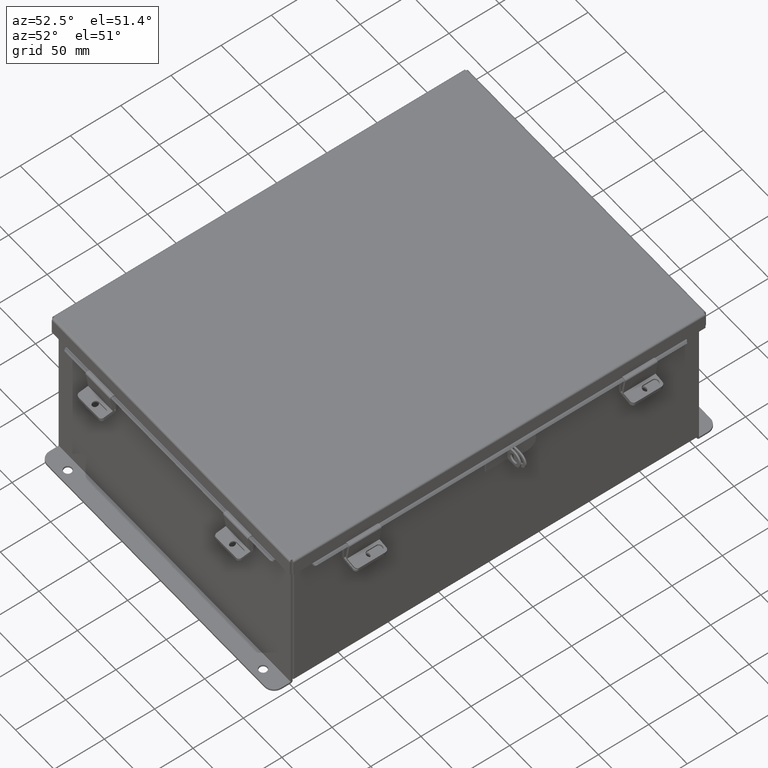
[diagram: clean part render]
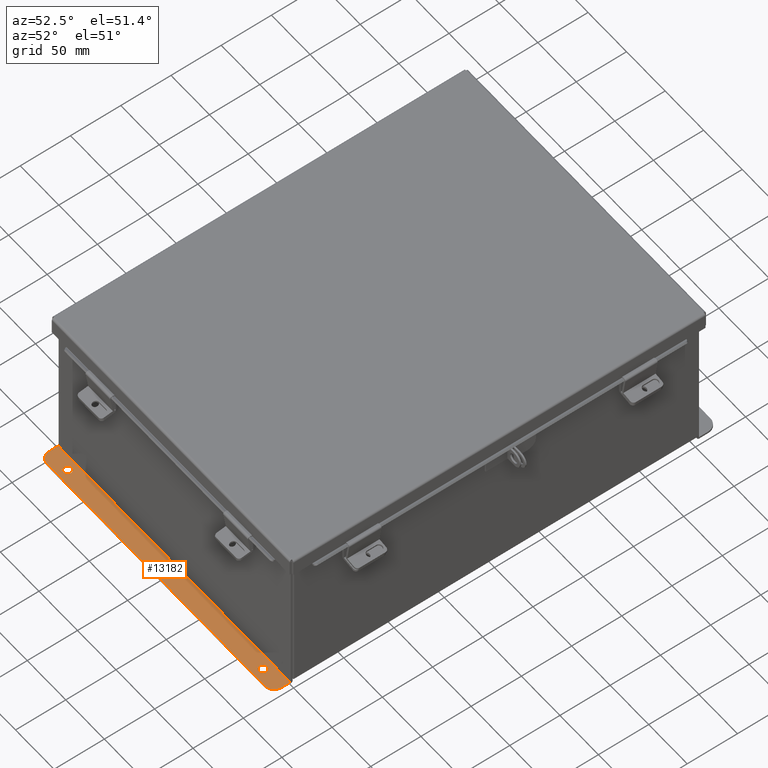
[diagram: same view with one face highlighted and labeled with its STEP entity id]
A machine part, auxiliary view. The second image highlights one B-rep face of the part: STEP entity #13182.
In plain terms, the highlighted planar face has unit normal (0, -0, 1).
Its self-contained STEP definition (entity closure, byte-faithful):
#205 = VERTEX_POINT ( 'NONE', #1315 ) ;
#207 = CIRCLE ( 'NONE', #1793, 0.1560000000000001700 ) ;
#412 = VECTOR ( 'NONE', #7511, 39.37007874015748100 ) ;
#582 = DIRECTION ( 'NONE',  ( 0.0000000000000000000, -1.000000000000000000, 3.502369222646487400E-015 ) ) ;
#854 = VERTEX_POINT ( 'NONE', #2554 ) ;
#867 = ORIENTED_EDGE ( 'NONE', *, *, #18913, .F. ) ;
#960 = LINE ( 'NONE', #6416, #17005 ) ;
#1315 = CARTESIAN_POINT ( 'NONE',  ( -5.925299999999992900, 0.3627999999999920700, -3.112300000000001200 ) ) ;
#1347 = EDGE_CURVE ( 'NONE', #4973, #7532, #960, .T. ) ;
#1630 = ORIENTED_EDGE ( 'NONE', *, *, #4746, .T. ) ;
#1644 = EDGE_LOOP ( 'NONE', ( #6127, #13809 ) ) ;
#1696 = DIRECTION ( 'NONE',  ( 0.0000000000000000000, -1.000000000000000000, 4.370956789862820400E-015 ) ) ;
#1746 = AXIS2_PLACEMENT_3D ( 'NONE', #3115, #13993, #4669 ) ;
#1793 = AXIS2_PLACEMENT_3D ( 'NONE', #14906, #5572, #16488 ) ;
#2408 = CARTESIAN_POINT ( 'NONE',  ( -4.987799999999992000, 0.2067999999999984900, -3.112300000000000700 ) ) ;
#2436 = CARTESIAN_POINT ( 'NONE',  ( 5.925300000000008000, 0.01300000000000010700, -3.112299999999999800 ) ) ;
#2554 = CARTESIAN_POINT ( 'NONE',  ( -5.550299999999990200, 0.7377999999999923500, -3.112300000000003000 ) ) ;
#2683 = EDGE_CURVE ( 'NONE', #4966, #7250, #6437, .T. ) ;
#2905 = CARTESIAN_POINT ( 'NONE',  ( -5.925299999999992900, 0.7377999999999923500, -3.112299999999998500 ) ) ;
#2995 = ORIENTED_EDGE ( 'NONE', *, *, #16476, .F. ) ;
#3115 = CARTESIAN_POINT ( 'NONE',  ( -5.550299999999990200, 0.3627999999999920700, -3.112300000000001200 ) ) ;
#3723 = CARTESIAN_POINT ( 'NONE',  ( 5.925300000000008000, 0.3628000000000008400, -3.112299999999996700 ) ) ;
#4526 = CARTESIAN_POINT ( 'NONE',  ( -5.925299999999991100, 0.01299999999999136600, -3.112299999999995800 ) ) ;
#4540 = EDGE_CURVE ( 'NONE', #9378, #6215, #12241, .T. ) ;
#4669 = DIRECTION ( 'NONE',  ( 0.0000000000000000000, -1.000000000000000000, 4.370956789862820400E-015 ) ) ;
#4746 = EDGE_CURVE ( 'NONE', #854, #205, #13468, .T. ) ;
#4881 = LINE ( 'NONE', #8448, #17306 ) ;
#4966 = VERTEX_POINT ( 'NONE', #3723 ) ;
#4973 = VERTEX_POINT ( 'NONE', #2436 ) ;
#5377 = AXIS2_PLACEMENT_3D ( 'NONE', #19196, #9839, #582 ) ;
#5452 = CARTESIAN_POINT ( 'NONE',  ( -2.035385365534024800E-024, -1.092739197465705300E-014, -3.112299999999999800 ) ) ;
#5493 = CARTESIAN_POINT ( 'NONE',  ( 5.550300000000008000, 0.7378000000000011200, -3.112300000000003000 ) ) ;
#5572 = DIRECTION ( 'NONE',  ( -0.0000000000000000000, -3.702694488566362300E-015, -1.000000000000000000 ) ) ;
#5968 = CARTESIAN_POINT ( 'NONE',  ( 5.925300000000008000, 0.0000000000000000000, -3.112299999999999800 ) ) ;
#6127 = ORIENTED_EDGE ( 'NONE', *, *, #10151, .T. ) ;
#6215 = VERTEX_POINT ( 'NONE', #2408 ) ;
#6416 = CARTESIAN_POINT ( 'NONE',  ( 5.925300000000008000, 0.01300000000000010700, -3.112299999999999800 ) ) ;
#6437 = CIRCLE ( 'NONE', #17307, 0.3750000000000000600 ) ;
#7033 = EDGE_LOOP ( 'NONE', ( #867, #1630, #13276, #16568, #2995, #18352 ) ) ;
#7250 = VERTEX_POINT ( 'NONE', #5493 ) ;
#7511 = DIRECTION ( 'NONE',  ( -4.919856193148104900E-031, -1.000000000000000000, 3.702694488566362300E-015 ) ) ;
#7532 = VERTEX_POINT ( 'NONE', #4526 ) ;
#8353 = AXIS2_PLACEMENT_3D ( 'NONE', #18237, #8908, #19833 ) ;
#8448 = CARTESIAN_POINT ( 'NONE',  ( 5.925300000000008000, 0.7378000000000011200, -3.112300000000003000 ) ) ;
#8452 = FACE_BOUND ( 'NONE', #15619, .T. ) ;
#8622 = CARTESIAN_POINT ( 'NONE',  ( 4.987800000000007100, 0.3628000000000008400, -3.112300000000001200 ) ) ;
#8908 = DIRECTION ( 'NONE',  ( -0.0000000000000000000, -3.702694488566362300E-015, -1.000000000000000000 ) ) ;
#9320 = CARTESIAN_POINT ( 'NONE',  ( 4.987800000000007100, 0.2068000000000006800, -3.112300000000000700 ) ) ;
#9378 = VERTEX_POINT ( 'NONE', #10910 ) ;
#9839 = DIRECTION ( 'NONE',  ( -0.0000000000000000000, -3.702694488566362300E-015, -1.000000000000000000 ) ) ;
#10147 = DIRECTION ( 'NONE',  ( -4.919856193148104900E-031, -1.000000000000000000, 3.702694488566362300E-015 ) ) ;
#10151 = EDGE_CURVE ( 'NONE', #18464, #15354, #17544, .T. ) ;
#10181 = DIRECTION ( 'NONE',  ( 0.0000000000000000000, -1.000000000000000000, 3.502369222646487400E-015 ) ) ;
#10910 = CARTESIAN_POINT ( 'NONE',  ( -4.987799999999992000, 0.5187999999999988200, -3.112300000000001600 ) ) ;
#11101 = AXIS2_PLACEMENT_3D ( 'NONE', #5452, #19511, #10147 ) ;
#11889 = EDGE_CURVE ( 'NONE', #6215, #9378, #17053, .T. ) ;
#12056 = DIRECTION ( 'NONE',  ( -1.000000000000000000, -4.910036603141682400E-031, 0.0000000000000000000 ) ) ;
#12201 = LINE ( 'NONE', #2905, #15877 ) ;
#12241 = CIRCLE ( 'NONE', #8353, 0.1560000000000001700 ) ;
#12590 = FACE_OUTER_BOUND ( 'NONE', #7033, .T. ) ;
#12763 = LINE ( 'NONE', #5968, #412 ) ;
#13098 = FACE_BOUND ( 'NONE', #1644, .T. ) ;
#13182 = ADVANCED_FACE ( 'NONE', ( #8452, #13098, #12590 ), #16364, .T. ) ;
#13276 = ORIENTED_EDGE ( 'NONE', *, *, #18457, .F. ) ;
#13468 = CIRCLE ( 'NONE', #1746, 0.3750000000000000600 ) ;
#13809 = ORIENTED_EDGE ( 'NONE', *, *, #15770, .T. ) ;
#13993 = DIRECTION ( 'NONE',  ( 0.0000000000000000000, 3.702694488566362300E-015, 1.000000000000000000 ) ) ;
#14112 = ORIENTED_EDGE ( 'NONE', *, *, #4540, .T. ) ;
#14167 = CARTESIAN_POINT ( 'NONE',  ( 5.550300000000008000, 0.3628000000000008400, -3.112300000000001200 ) ) ;
#14906 = CARTESIAN_POINT ( 'NONE',  ( 4.987800000000007100, 0.3628000000000008400, -3.112300000000001200 ) ) ;
#15354 = VERTEX_POINT ( 'NONE', #9320 ) ;
#15358 = DIRECTION ( 'NONE',  ( 4.919856193148104900E-031, 1.000000000000000000, -3.702694488566362300E-015 ) ) ;
#15619 = EDGE_LOOP ( 'NONE', ( #14112, #19641 ) ) ;
#15770 = EDGE_CURVE ( 'NONE', #15354, #18464, #207, .T. ) ;
#15877 = VECTOR ( 'NONE', #15358, 39.37007874015748100 ) ;
#16364 = PLANE ( 'NONE',  #11101 ) ;
#16476 = EDGE_CURVE ( 'NONE', #4966, #4973, #12763, .T. ) ;
#16488 = DIRECTION ( 'NONE',  ( 0.0000000000000000000, -1.000000000000000000, 3.502369222646487400E-015 ) ) ;
#16568 = ORIENTED_EDGE ( 'NONE', *, *, #1347, .F. ) ;
#16936 = CARTESIAN_POINT ( 'NONE',  ( 4.987800000000007100, 0.5188000000000010400, -3.112300000000001600 ) ) ;
#17005 = VECTOR ( 'NONE', #12056, 39.37007874015748100 ) ;
#17053 = CIRCLE ( 'NONE', #5377, 0.1560000000000001700 ) ;
#17306 = VECTOR ( 'NONE', #17781, 39.37007874015748100 ) ;
#17307 = AXIS2_PLACEMENT_3D ( 'NONE', #14167, #18752, #1696 ) ;
#17544 = CIRCLE ( 'NONE', #19615, 0.1560000000000001700 ) ;
#17781 = DIRECTION ( 'NONE',  ( 1.000000000000000000, 4.910036603141682400E-031, -0.0000000000000000000 ) ) ;
#18237 = CARTESIAN_POINT ( 'NONE',  ( -4.987799999999992000, 0.3627999999999986800, -3.112300000000001200 ) ) ;
#18352 = ORIENTED_EDGE ( 'NONE', *, *, #2683, .T. ) ;
#18457 = EDGE_CURVE ( 'NONE', #7532, #205, #12201, .T. ) ;
#18464 = VERTEX_POINT ( 'NONE', #16936 ) ;
#18752 = DIRECTION ( 'NONE',  ( 0.0000000000000000000, 3.702694488566362300E-015, 1.000000000000000000 ) ) ;
#18913 = EDGE_CURVE ( 'NONE', #854, #7250, #4881, .T. ) ;
#19196 = CARTESIAN_POINT ( 'NONE',  ( -4.987799999999992000, 0.3627999999999986800, -3.112300000000001200 ) ) ;
#19511 = DIRECTION ( 'NONE',  ( 0.0000000000000000000, 3.702694488566362300E-015, 1.000000000000000000 ) ) ;
#19550 = DIRECTION ( 'NONE',  ( -0.0000000000000000000, -3.702694488566362300E-015, -1.000000000000000000 ) ) ;
#19615 = AXIS2_PLACEMENT_3D ( 'NONE', #8622, #19550, #10181 ) ;
#19641 = ORIENTED_EDGE ( 'NONE', *, *, #11889, .T. ) ;
#19833 = DIRECTION ( 'NONE',  ( 0.0000000000000000000, -1.000000000000000000, 3.502369222646487400E-015 ) ) ;